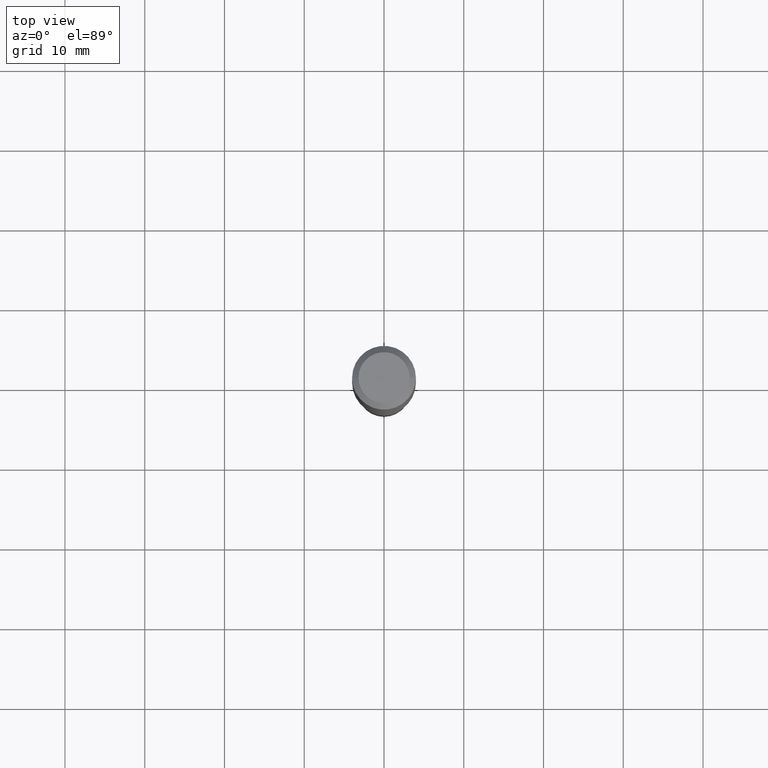
[diagram: clean part render]
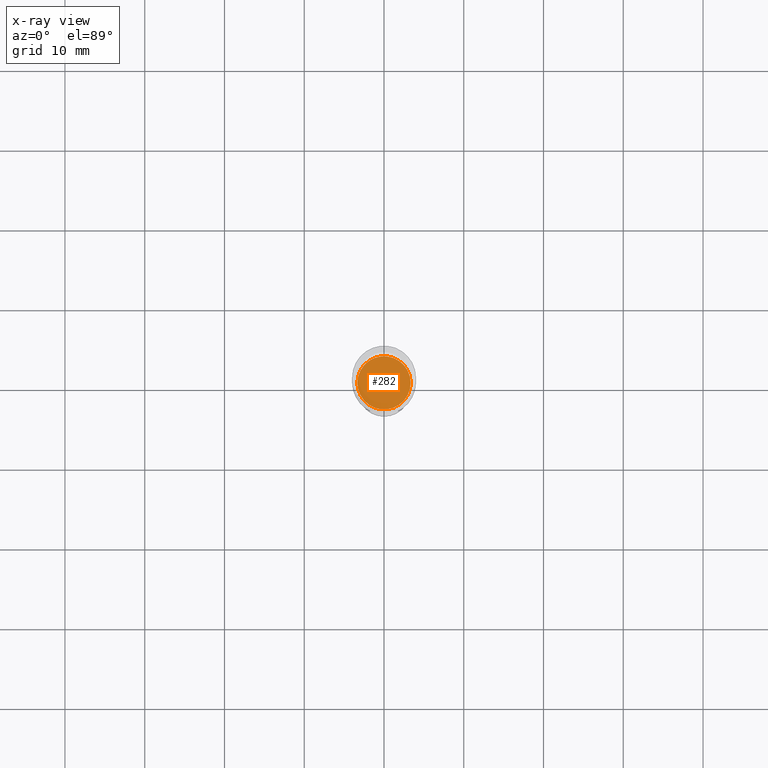
[diagram: x-ray — body ghosted, one internal face saturated and labeled with its STEP entity id]
A machine part, top view, then the same camera in x-ray: the body is ghosted and one INTERNAL B-rep face — a face not visible from any outside direction — is saturated and labeled: STEP entity #282.
In plain terms, the highlighted planar face has unit normal (-0, 0, 1).
Its self-contained STEP definition (entity closure, byte-faithful):
#7 = CARTESIAN_POINT ( 'NONE',  ( 3.659399521575439863E-29, -5.224652675444884140E-15, -1.496400000000000396 ) ) ;
#27 = DIRECTION ( 'NONE',  ( 1.000000000000000000, -6.982962677686265133E-15, 0.000000000000000000 ) ) ;
#28 = EDGE_LOOP ( 'NONE', ( #484, #233 ) ) ;
#49 = DIRECTION ( 'NONE',  ( 1.000000000000000000, -6.982962677686265133E-15, 0.000000000000000000 ) ) ;
#56 = CIRCLE ( 'NONE', #275, 0.1313999999999999890 ) ;
#72 = VERTEX_POINT ( 'NONE', #360 ) ;
#116 = DIRECTION ( 'NONE',  ( 1.000000000000000000, -6.982962677686265922E-15, 4.876176775795935793E-29 ) ) ;
#117 = EDGE_CURVE ( 'NONE', #321, #72, #344, .T. ) ;
#139 = PLANE ( 'NONE',  #287 ) ;
#189 = CARTESIAN_POINT ( 'NONE',  ( 0.1313999999999999890, -6.142213971292859548E-15, -1.496400000000000396 ) ) ;
#200 = AXIS2_PLACEMENT_3D ( 'NONE', #423, #371, #49 ) ;
#233 = ORIENTED_EDGE ( 'NONE', *, *, #456, .F. ) ;
#242 = DIRECTION ( 'NONE',  ( -2.438088387897960049E-29, 3.491481338843145188E-15, 1.000000000000000000 ) ) ;
#275 = AXIS2_PLACEMENT_3D ( 'NONE', #7, #313, #27 ) ;
#282 = ADVANCED_FACE ( 'NONE', ( #359 ), #139, .F. ) ;
#287 = AXIS2_PLACEMENT_3D ( 'NONE', #289, #242, #116 ) ;
#289 = CARTESIAN_POINT ( 'NONE',  ( 1.486955544557679650E-29, -8.335716098366654427E-15, -1.496400000000000396 ) ) ;
#313 = DIRECTION ( 'NONE',  ( -2.445468806185136597E-29, 3.491481338843145583E-15, 1.000000000000000000 ) ) ;
#321 = VERTEX_POINT ( 'NONE', #189 ) ;
#344 = CIRCLE ( 'NONE', #200, 0.1313999999999999890 ) ;
#359 = FACE_OUTER_BOUND ( 'NONE', #28, .T. ) ;
#360 = CARTESIAN_POINT ( 'NONE',  ( -0.1313999999999999890, -4.288350293482001570E-15, -1.496400000000000396 ) ) ;
#371 = DIRECTION ( 'NONE',  ( -2.445468806185136597E-29, 3.491481338843145583E-15, 1.000000000000000000 ) ) ;
#423 = CARTESIAN_POINT ( 'NONE',  ( 3.659399521575439863E-29, -5.224652675444884140E-15, -1.496400000000000396 ) ) ;
#456 = EDGE_CURVE ( 'NONE', #72, #321, #56, .T. ) ;
#484 = ORIENTED_EDGE ( 'NONE', *, *, #117, .F. ) ;